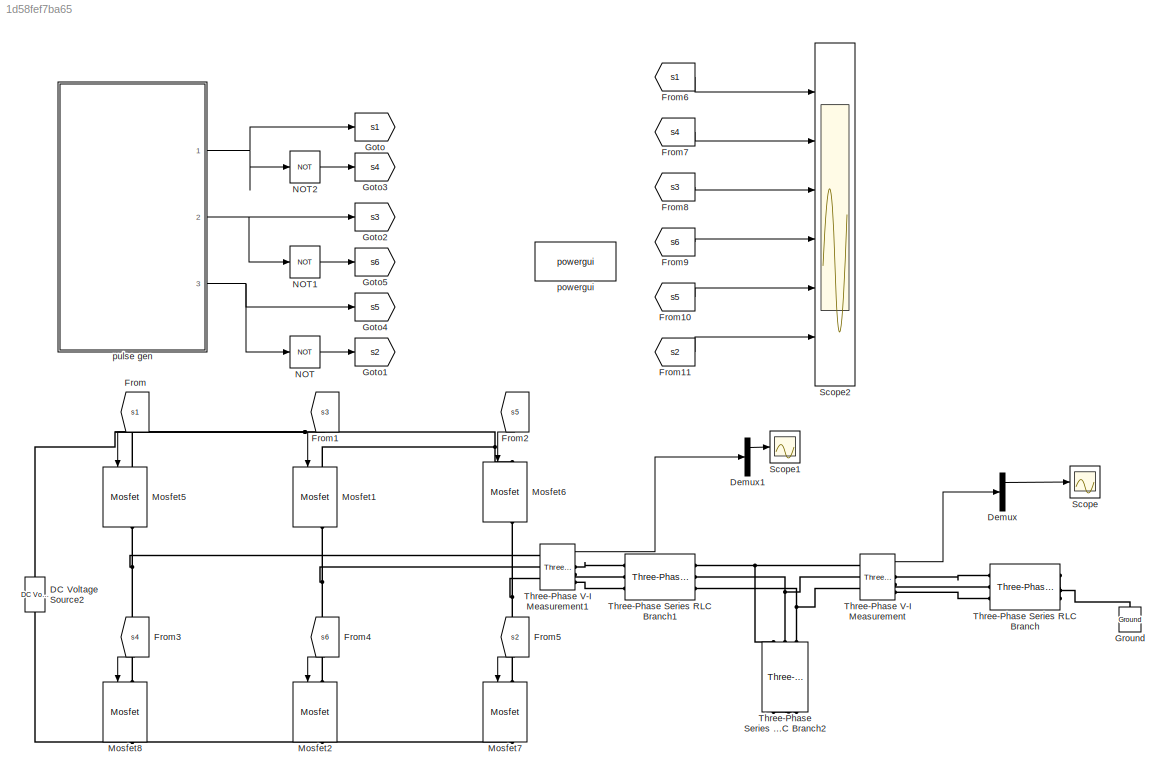
MODEL slx_1d58fef7ba65
KIND model
CONFIG AbsTol = auto
CONFIG EnableMultiTasking = off
CONFIG FixedStep = auto
CONFIG MaxStep = auto
CONFIG MinStep = auto
CONFIG RelTol = 1e-3
CONFIG SampleTimeConstraint = Unconstrained
CONFIG SolverName = VariableStepAuto
CONFIG StartTime = 0.0
CONFIG StopTime = 0.8
BLOCK [Reference] DC Voltage Source2  REF=spsDCVoltageSourceLib/DC Voltage Source
  Ports = [0, 0, 0, 0, 0, 1, 1]
  SourceBlock = spsDCVoltageSourceLib/DC Voltage Source
  SourceType = DC Voltage Source
BLOCK [Demux] Demux
  Outputs = 3
  Ports = [1, 3]
BLOCK [Demux] Demux1
  Outputs = 3
  Ports = [1, 3]
BLOCK [From] From
  GotoTag = s1
  NameLocation = left
BLOCK [From] From1
  GotoTag = s3
  NameLocation = left
BLOCK [From] From10
  GotoTag = s5
BLOCK [From] From11
  GotoTag = s2
BLOCK [From] From2
  GotoTag = s5
  NameLocation = left
BLOCK [From] From3
  GotoTag = s4
  NameLocation = left
BLOCK [From] From4
  GotoTag = s6
  NameLocation = left
BLOCK [From] From5
  GotoTag = s2
  NameLocation = left
BLOCK [From] From6
  GotoTag = s1
BLOCK [From] From7
  GotoTag = s4
BLOCK [From] From8
  GotoTag = s3
BLOCK [From] From9
  GotoTag = s6
BLOCK [Goto] Goto
  GotoTag = s1
  NameLocation = top
BLOCK [Goto] Goto1
  GotoTag = s2
  NameLocation = top
BLOCK [Goto] Goto2
  GotoTag = s3
  NameLocation = top
BLOCK [Goto] Goto3
  GotoTag = s4
  NameLocation = top
BLOCK [Goto] Goto4
  GotoTag = s5
  NameLocation = top
BLOCK [Goto] Goto5
  GotoTag = s6
  NameLocation = top
BLOCK [Reference] Ground  REF=spsGroundLib/Ground
  NameLocation = right
  Ports = [0, 0, 0, 0, 0, 1]
  SourceBlock = spsGroundLib/Ground
  SourceType = Ground
BLOCK [Reference] Mosfet1  REF=spsMosfetLib/Mosfet
  NameLocation = left
  Ports = [1, 1, 0, 0, 0, 1, 1]
  SourceBlock = spsMosfetLib/Mosfet
  SourceType = Mosfet
BLOCK [Reference] Mosfet2  REF=spsMosfetLib/Mosfet
  NameLocation = left
  Ports = [1, 1, 0, 0, 0, 1, 1]
  SourceBlock = spsMosfetLib/Mosfet
  SourceType = Mosfet
BLOCK [Reference] Mosfet5  REF=spsMosfetLib/Mosfet
  NameLocation = left
  Ports = [1, 1, 0, 0, 0, 1, 1]
  SourceBlock = spsMosfetLib/Mosfet
  SourceType = Mosfet
BLOCK [Reference] Mosfet6  REF=spsMosfetLib/Mosfet
  NameLocation = left
  Ports = [1, 1, 0, 0, 0, 1, 1]
  SourceBlock = spsMosfetLib/Mosfet
  SourceType = Mosfet
BLOCK [Reference] Mosfet7  REF=spsMosfetLib/Mosfet
  NameLocation = left
  Ports = [1, 1, 0, 0, 0, 1, 1]
  SourceBlock = spsMosfetLib/Mosfet
  SourceType = Mosfet
BLOCK [Reference] Mosfet8  REF=spsMosfetLib/Mosfet
  NameLocation = left
  Ports = [1, 1, 0, 0, 0, 1, 1]
  SourceBlock = spsMosfetLib/Mosfet
  SourceType = Mosfet
BLOCK [Logic] NOT
  AllPortsSameDT = off
  IconShape = distinctive
  Operator = NOT
  OutDataTypeStr = boolean
  Ports = [1, 1]
BLOCK [Logic] NOT1
  AllPortsSameDT = off
  IconShape = distinctive
  Operator = NOT
  OutDataTypeStr = boolean
  Ports = [1, 1]
BLOCK [Logic] NOT2
  AllPortsSameDT = off
  IconShape = distinctive
  Operator = NOT
  OutDataTypeStr = boolean
  Ports = [1, 1]
BLOCK [Scope] Scope
  Floating = off
  NumInputPorts = 1
  Ports = [1]
  ScopeSpecificationString = Simulink.scopes.TimeScopeBlockCfg('CurrentConfiguration', extmgr.ConfigurationSet(extmgr.Configuration('Core','General UI',true),extmgr.Configuration('Core','Source UI',true),extmgr.Configuration('Sources','WiredSimulink',true),extmgr.Configuration('Visuals','Time Domain',true,'SerializedDisplays',{struct('MinYLimReal','-6.27084','MaxYLimReal','8.51277','YLabelReal','','MinYLimMag','0.00000','MaxY...<+1460ch>
BLOCK [Scope] Scope1
  Floating = off
  NumInputPorts = 1
  Ports = [1]
  ScopeSpecificationString = Simulink.scopes.TimeScopeBlockCfg('CurrentConfiguration', extmgr.ConfigurationSet(extmgr.Configuration('Core','General UI',true),extmgr.Configuration('Core','Source UI',true),extmgr.Configuration('Sources','WiredSimulink',true,'DataLoggingVariableName','ScopeData2'),extmgr.Configuration('Visuals','Time Domain',true,'SerializedDisplays',{struct('MinYLimReal','-266.79427','MaxYLimReal','266.80917','...<+1541ch>
BLOCK [Scope] Scope2
  Floating = off
  NumInputPorts = 6
  Ports = [6]
  ScopeSpecificationString = Simulink.scopes.TimeScopeBlockCfg('CurrentConfiguration', extmgr.ConfigurationSet(extmgr.Configuration('Core','General UI',true),extmgr.Configuration('Core','Source UI',true),extmgr.Configuration('Sources','WiredSimulink',true,'DataLoggingVariableName','ScopeData3'),extmgr.Configuration('Visuals','Time Domain',true,'SerializedDisplays',{struct('MinYLimReal','-0.125','MaxYLimReal','1.125','YLabelRe...<+3843ch>
BLOCK [Reference] Three-Phase Series RLC Branch  REF=spsThreePhaseSeriesRLCBranchLib/Three-Phase
Series RLC Branch
  AttributesFormatString = \n
  Ports = [0, 0, 0, 0, 0, 3, 3]
  SourceBlock = spsThreePhaseSeriesRLCBranchLib/Three-Phase\nSeries RLC Branch
  SourceType = Three-Phase Series RLC Branch
BLOCK [Reference] Three-Phase Series RLC Branch1  REF=spsThreePhaseSeriesRLCBranchLib/Three-Phase
Series RLC Branch
  AttributesFormatString = \n
  Ports = [0, 0, 0, 0, 0, 3, 3]
  SourceBlock = spsThreePhaseSeriesRLCBranchLib/Three-Phase\nSeries RLC Branch
  SourceType = Three-Phase Series RLC Branch
BLOCK [Reference] Three-Phase Series RLC Branch2  REF=spsThreePhaseSeriesRLCBranchLib/Three-Phase
Series RLC Branch
  AttributesFormatString = \n
  NameLocation = left
  Ports = [0, 0, 0, 0, 0, 3, 3]
  SourceBlock = spsThreePhaseSeriesRLCBranchLib/Three-Phase\nSeries RLC Branch
  SourceType = Three-Phase Series RLC Branch
BLOCK [Reference] Three-Phase V-I Measurement  REF=spsThreePhaseVIMeasurementLib/Three-Phase
V-I Measurement
  Ports = [0, 2, 0, 0, 0, 3, 3]
  SourceBlock = spsThreePhaseVIMeasurementLib/Three-Phase\nV-I Measurement
  SourceType = Three-Phase VI Measurement
BLOCK [Reference] Three-Phase V-I Measurement1  REF=spsThreePhaseVIMeasurementLib/Three-Phase
V-I Measurement
  Ports = [0, 2, 0, 0, 0, 3, 3]
  SourceBlock = spsThreePhaseVIMeasurementLib/Three-Phase\nV-I Measurement
  SourceType = Three-Phase VI Measurement
BLOCK [Reference] powergui  REF=spspowerguiLib/powergui
  Ports = []
  Priority = 1
  SourceBlock = spspowerguiLib/powergui
  SourceType = PSB option menu block
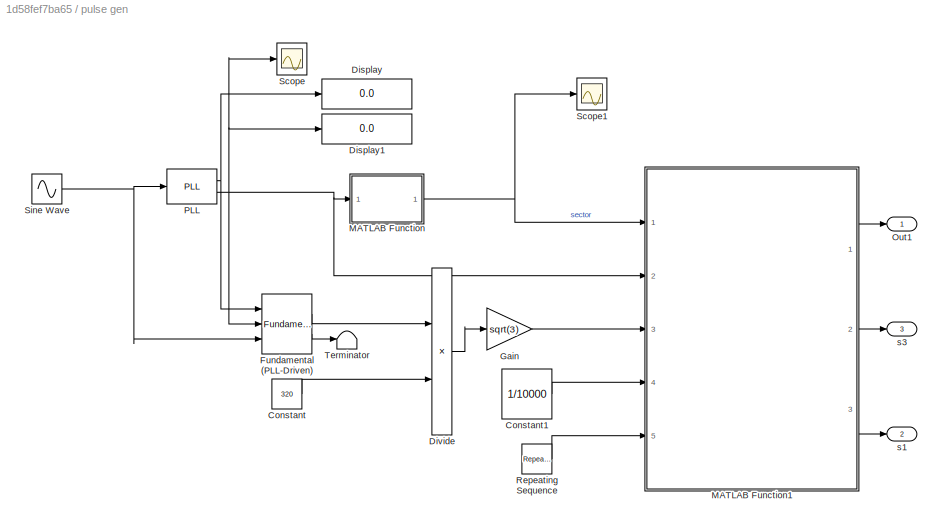
BLOCK [SubSystem] pulse gen
  Ports = [0, 3]
BLOCK [Constant] pulse gen/Constant
  Value = 320
BLOCK [Constant] pulse gen/Constant1
  Value = 1/10000
BLOCK [Display] pulse gen/Display
  Decimation = 1
  Ports = [1]
BLOCK [Display] pulse gen/Display1
  Decimation = 1
  Ports = [1]
BLOCK [Product] pulse gen/Divide
  Inputs = */
  Ports = [2, 1]
BLOCK [Reference] pulse gen/Fundamental (PLL-Driven)  REF=spsFundamentalPLLDrivenLib/Fundamental
(PLL-Driven)
  Ports = [3, 2]
  SourceBlock = spsFundamentalPLLDrivenLib/Fundamental\n(PLL-Driven)
  SourceType = Fundamental (PLL-Driven)
BLOCK [Gain] pulse gen/Gain
  Gain = sqrt(3)
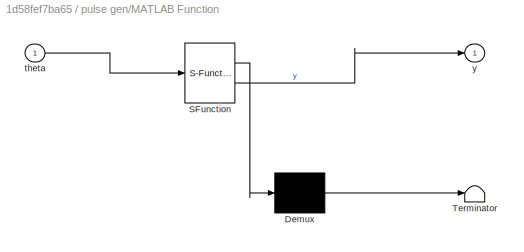
BLOCK [SubSystem] pulse gen/MATLAB Function
  ErrorFcn = Stateflow.Translate.translate
  PermitHierarchicalResolution = ExplicitOnly
  Ports = [1, 1]
  SFBlockType = MATLAB Function
  TreatAsAtomicUnit = on
BLOCK [Demux] pulse gen/MATLAB Function/ Demux 
  Outputs = 1
  Ports = [1, 1]
BLOCK [S-Function] pulse gen/MATLAB Function/ SFunction 
  EnableBusSupport = on
  FunctionName = sf_sfun
  PortCounts = [1 2]
  Ports = [1, 2]
  SFcnIsStateOwnerBlock = off
  SFunctionDeploymentMode = off
  Tag = Stateflow S-Function 2
BLOCK [Terminator] pulse gen/MATLAB Function/ Terminator 
BLOCK [Inport] pulse gen/MATLAB Function/theta
BLOCK [Outport] pulse gen/MATLAB Function/y
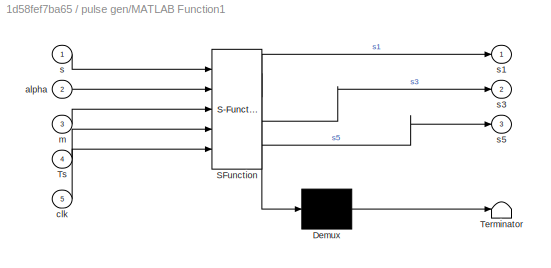
BLOCK [SubSystem] pulse gen/MATLAB Function1
  ErrorFcn = Stateflow.Translate.translate
  PermitHierarchicalResolution = ExplicitOnly
  Ports = [5, 3]
  SFBlockType = MATLAB Function
  TreatAsAtomicUnit = on
BLOCK [Demux] pulse gen/MATLAB Function1/ Demux 
  Outputs = 1
  Ports = [1, 1]
BLOCK [S-Function] pulse gen/MATLAB Function1/ SFunction 
  EnableBusSupport = on
  FunctionName = sf_sfun
  PortCounts = [5 4]
  Ports = [5, 4]
  SFcnIsStateOwnerBlock = off
  SFunctionDeploymentMode = off
  Tag = Stateflow S-Function 1
BLOCK [Terminator] pulse gen/MATLAB Function1/ Terminator 
BLOCK [Inport] pulse gen/MATLAB Function1/Ts
  Port = 4
BLOCK [Inport] pulse gen/MATLAB Function1/alpha
  Port = 2
BLOCK [Inport] pulse gen/MATLAB Function1/clk
  Port = 5
BLOCK [Inport] pulse gen/MATLAB Function1/m
  Port = 3
BLOCK [Inport] pulse gen/MATLAB Function1/s
BLOCK [Outport] pulse gen/MATLAB Function1/s1
BLOCK [Outport] pulse gen/MATLAB Function1/s3
  Port = 2
BLOCK [Outport] pulse gen/MATLAB Function1/s5
  Port = 3
BLOCK [Outport] pulse gen/Out1
BLOCK [Reference] pulse gen/PLL  REF=spsPLLLib/PLL
  Ports = [1, 2]
  SourceBlock = spsPLLLib/PLL
  SourceType = PLL
BLOCK [Reference] pulse gen/Repeating Sequence  REF=simulink/Sources/Repeating
Sequence
  Ports = [0, 1]
  SourceBlock = simulink/Sources/Repeating\nSequence
  SourceType = Repeating table
BLOCK [Scope] pulse gen/Scope
  Floating = off
  NumInputPorts = 1
  Ports = [1]
  ScopeSpecificationString = Simulink.scopes.TimeScopeBlockCfg('CurrentConfiguration', extmgr.ConfigurationSet(extmgr.Configuration('Core','General UI',true),extmgr.Configuration('Core','Source UI',true),extmgr.Configuration('Sources','WiredSimulink',true,'DataLoggingVariableName','ScopeData1'),extmgr.Configuration('Visuals','Time Domain',true,'SerializedDisplays',{struct('MinYLimReal','-0.7854','MaxYLimReal','7.06858','YLabe...<+1476ch>
BLOCK [Scope] pulse gen/Scope1
  Floating = off
  NumInputPorts = 1
  Ports = [1]
  ScopeSpecificationString = Simulink.scopes.TimeScopeBlockCfg('CurrentConfiguration', extmgr.ConfigurationSet(extmgr.Configuration('Core','General UI',true),extmgr.Configuration('Core','Source UI',true),extmgr.Configuration('Sources','WiredSimulink',true,'DataLoggingVariableName','ScopeData4'),extmgr.Configuration('Visuals','Time Domain',true,'SerializedDisplays',{struct('MinYLimReal','0.375','MaxYLimReal','6.625','YLabelRea...<+1474ch>
BLOCK [Sin] pulse gen/Sine Wave
  Amplitude = 220*sqrt(2)
  Frequency = 100*pi
  Ports = [0, 1]
  SampleTime = 0
BLOCK [Terminator] pulse gen/Terminator
BLOCK [Outport] pulse gen/s1
  Port = 2
BLOCK [Outport] pulse gen/s3
  Port = 3
LINE Demux1:1 -> Scope1:1
LINE Demux:1 -> Scope:1
LINE From10:1 -> Scope2:5
LINE From11:1 -> Scope2:6
LINE From1:1 -> Mosfet1:1
LINE From2:1 -> Mosfet6:1
LINE From3:1 -> Mosfet8:1
LINE From4:1 -> Mosfet2:1
LINE From5:1 -> Mosfet7:1
LINE From6:1 -> Scope2:1
LINE From7:1 -> Scope2:2
LINE From8:1 -> Scope2:3
LINE From9:1 -> Scope2:4
LINE From:1 -> Mosfet5:1
LINE NOT1:1 -> Goto5:1
LINE NOT2:1 -> Goto3:1
LINE NOT:1 -> Goto1:1
LINE Three-Phase V-I Measurement1:1 -> Demux1:1
LINE Three-Phase V-I Measurement:1 -> Demux:1
LINE pulse gen/Constant1:1 -> pulse gen/MATLAB Function1:4
LINE pulse gen/Constant:1 -> pulse gen/Divide:2
LINE pulse gen/Divide:1 -> pulse gen/Gain:1
LINE pulse gen/Fundamental (PLL-Driven):1 -> pulse gen/Divide:1
LINE pulse gen/Fundamental (PLL-Driven):2 -> pulse gen/Terminator:1
LINE pulse gen/Gain:1 -> pulse gen/MATLAB Function1:3
LINE pulse gen/MATLAB Function1:1 -> pulse gen/Out1:1
LINE pulse gen/MATLAB Function1:2 -> pulse gen/s3:1
LINE pulse gen/MATLAB Function1:3 -> pulse gen/s1:1
NET pulse gen/MATLAB Function:1 -> pulse gen/MATLAB Function1:1, pulse gen/Scope1:1
NET pulse gen/PLL:1 -> pulse gen/Display:1, pulse gen/Fundamental (PLL-Driven):1
NET pulse gen/PLL:2 -> pulse gen/Display1:1, pulse gen/Fundamental (PLL-Driven):2, pulse gen/MATLAB Function1:2, pulse gen/MATLAB Function:1, pulse gen/Scope:1
LINE pulse gen/Repeating Sequence:1 -> pulse gen/MATLAB Function1:5
NET pulse gen/Sine Wave:1 -> pulse gen/Fundamental (PLL-Driven):3, pulse gen/PLL:1
NET pulse gen:1 -> Goto:1, NOT2:1
NET pulse gen:2 -> Goto2:1, NOT1:1
NET pulse gen:3 -> Goto4:1, NOT:1
PNET net1: DC Voltage Source2:LConn1 -- Mosfet2:RConn1 -- Mosfet7:RConn1 -- Mosfet8:RConn1
PNET net2: DC Voltage Source2:RConn1 -- Mosfet1:LConn1 -- Mosfet5:LConn1 -- Mosfet6:LConn1
PNET net3: Ground:LConn1 -- Three-Phase Series RLC Branch:RConn1 -- Three-Phase Series RLC Branch:RConn2 -- Three-Phase Series RLC Branch:RConn3
PNET net4: Mosfet1:RConn1 -- Mosfet2:LConn1 -- Three-Phase V-I Measurement1:LConn2
PNET net5: Mosfet5:RConn1 -- Mosfet8:LConn1 -- Three-Phase V-I Measurement1:LConn1
PNET net6: Mosfet6:RConn1 -- Mosfet7:LConn1 -- Three-Phase V-I Measurement1:LConn3
PLINE Three-Phase Series RLC Branch1:LConn1 -- Three-Phase V-I Measurement1:RConn1
PLINE Three-Phase Series RLC Branch1:LConn2 -- Three-Phase V-I Measurement1:RConn2
PLINE Three-Phase Series RLC Branch1:LConn3 -- Three-Phase V-I Measurement1:RConn3
PNET net7: Three-Phase Series RLC Branch1:RConn1 -- Three-Phase Series RLC Branch2:LConn1 -- Three-Phase V-I Measurement:LConn1
PNET net8: Three-Phase Series RLC Branch1:RConn2 -- Three-Phase Series RLC Branch2:LConn2 -- Three-Phase V-I Measurement:LConn2
PNET net9: Three-Phase Series RLC Branch1:RConn3 -- Three-Phase Series RLC Branch2:LConn3 -- Three-Phase V-I Measurement:LConn3
PNET net10: Three-Phase Series RLC Branch2:RConn1 -- Three-Phase Series RLC Branch2:RConn2 -- Three-Phase Series RLC Branch2:RConn3
PLINE Three-Phase Series RLC Branch:LConn1 -- Three-Phase V-I Measurement:RConn1
PLINE Three-Phase Series RLC Branch:LConn2 -- Three-Phase V-I Measurement:RConn2
PLINE Three-Phase Series RLC Branch:LConn3 -- Three-Phase V-I Measurement:RConn3
note: NET lines group one-source signal fan-out (src -> all destinations, sorted); 1:1 wires keep LINE; PNET lines group multi-terminal physical nets as a canonical sorted terminal list (undirected conserving connections); 2-terminal nets keep the pairwise PLINE form
CHART pulse gen/MATLAB Function1 states=1 transitions=1
  STATE_LABEL 'eML_blk_kernel()'
  STATE_LABEL 'SCRIPT:\nfunction [s1,s3,s5] = fcn(s,alpha,m,Ts,clk)\n\nT1 = Ts*m*sin((pi/3)-(alpha-(pi/3)*(s-1)));\nT2 = Ts*m*sin(alpha-(pi/3)*(s-1));\nT0 = Ts - T1 - T2;\n\nswitch(s)\n    case (1)\n        if( clk >= T0/4 && clk < (T1 + T2 + T0*3/4) )\n            s1 = 1;\n        else\n            s1 = 0;\n        end \n        if( clk >= (T0/4 + T1/2) && clk < (T0*3/4 + T1/2 + T2) )\n            s3 = 1;\n        else\n       ...<+2252ch>'
CHART pulse gen/MATLAB Function states=1 transitions=1
  STATE_LABEL 'eML_blk_kernel()'
  STATE_LABEL 'SCRIPT:\nfunction y = fcn(theta)\nif (theta >= 0 && theta <= pi/3)\n    u = 1;\nelseif (theta >= pi/3 && theta <= 2*pi/3)\n    u = 2;\nelseif (theta >= 2*pi/3 && theta <= pi)\n    u = 3;\nelseif (theta >= pi && theta <= 4*pi/3)\n    u = 4;\nelseif (theta >= 4*pi/3 && theta <= 5*pi/3)\n    u = 5;\nelse\n    u = 6;\nend\ny = u;\n'
CHART  states=0 transitions=0
CHART  states=0 transitions=0
